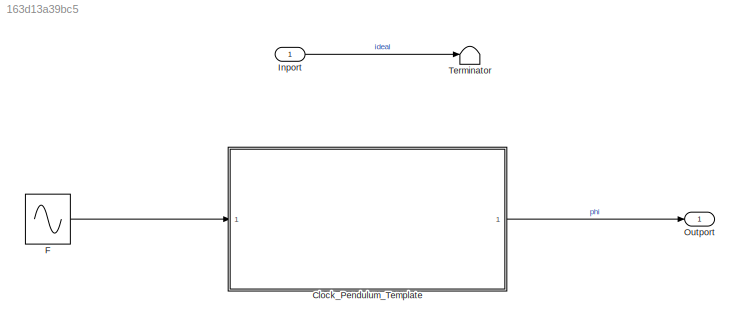
MODEL slx_163d13a39bc5
KIND model
CONFIG AbsTol = auto
CONFIG EnableMultiTasking = off
CONFIG FixedStep = auto
CONFIG MaxStep = 0.01
CONFIG MinStep = auto
CONFIG RelTol = 1e-3
CONFIG SampleTimeConstraint = Unconstrained
CONFIG SolverName = VariableStepAuto
CONFIG StartTime = 0.0
CONFIG StopTime = 10.0
WORKSPACE source: mxarray member
WORKSPACE L = 0.9939
WORKSPACE g = 9.81
WORKSPACE m = 1
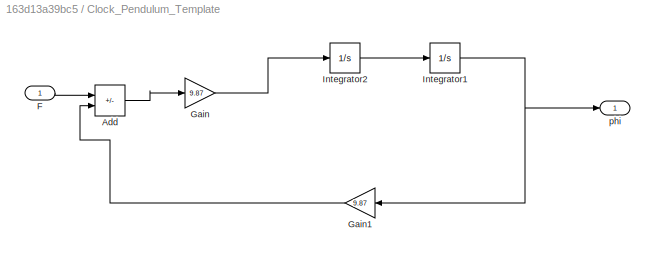
BLOCK [SubSystem] Clock_Pendulum_Template
BLOCK [Sum] Clock_Pendulum_Template/Add
  IconShape = rectangular
  Inputs = +-
BLOCK [Inport] Clock_Pendulum_Template/F
BLOCK [Gain] Clock_Pendulum_Template/Gain
  Gain = 9.87
BLOCK [Gain] Clock_Pendulum_Template/Gain1
  Gain = 9.87
BLOCK [Integrator] Clock_Pendulum_Template/Integrator1
BLOCK [Integrator] Clock_Pendulum_Template/Integrator2
BLOCK [Outport] Clock_Pendulum_Template/phi
BLOCK [Sin] F
  SampleTime = 0
BLOCK [Inport] Inport
BLOCK [Outport] Outport
BLOCK [Terminator] Terminator
LINE Clock_Pendulum_Template/Add:1 -> Clock_Pendulum_Template/Gain:1
LINE Clock_Pendulum_Template/F:1 -> Clock_Pendulum_Template/Add:1
LINE Clock_Pendulum_Template/Gain1:1 -> Clock_Pendulum_Template/Add:2
LINE Clock_Pendulum_Template/Gain:1 -> Clock_Pendulum_Template/Integrator2:1
NET Clock_Pendulum_Template/Integrator1:1 -> Clock_Pendulum_Template/Gain1:1, Clock_Pendulum_Template/phi:1
LINE Clock_Pendulum_Template/Integrator2:1 -> Clock_Pendulum_Template/Integrator1:1
LINE Clock_Pendulum_Template:1 -> Outport:1
LINE F:1 -> Clock_Pendulum_Template:1
LINE Inport:1 -> Terminator:1
note: NET lines group one-source signal fan-out (src -> all destinations, sorted); 1:1 wires keep LINE
